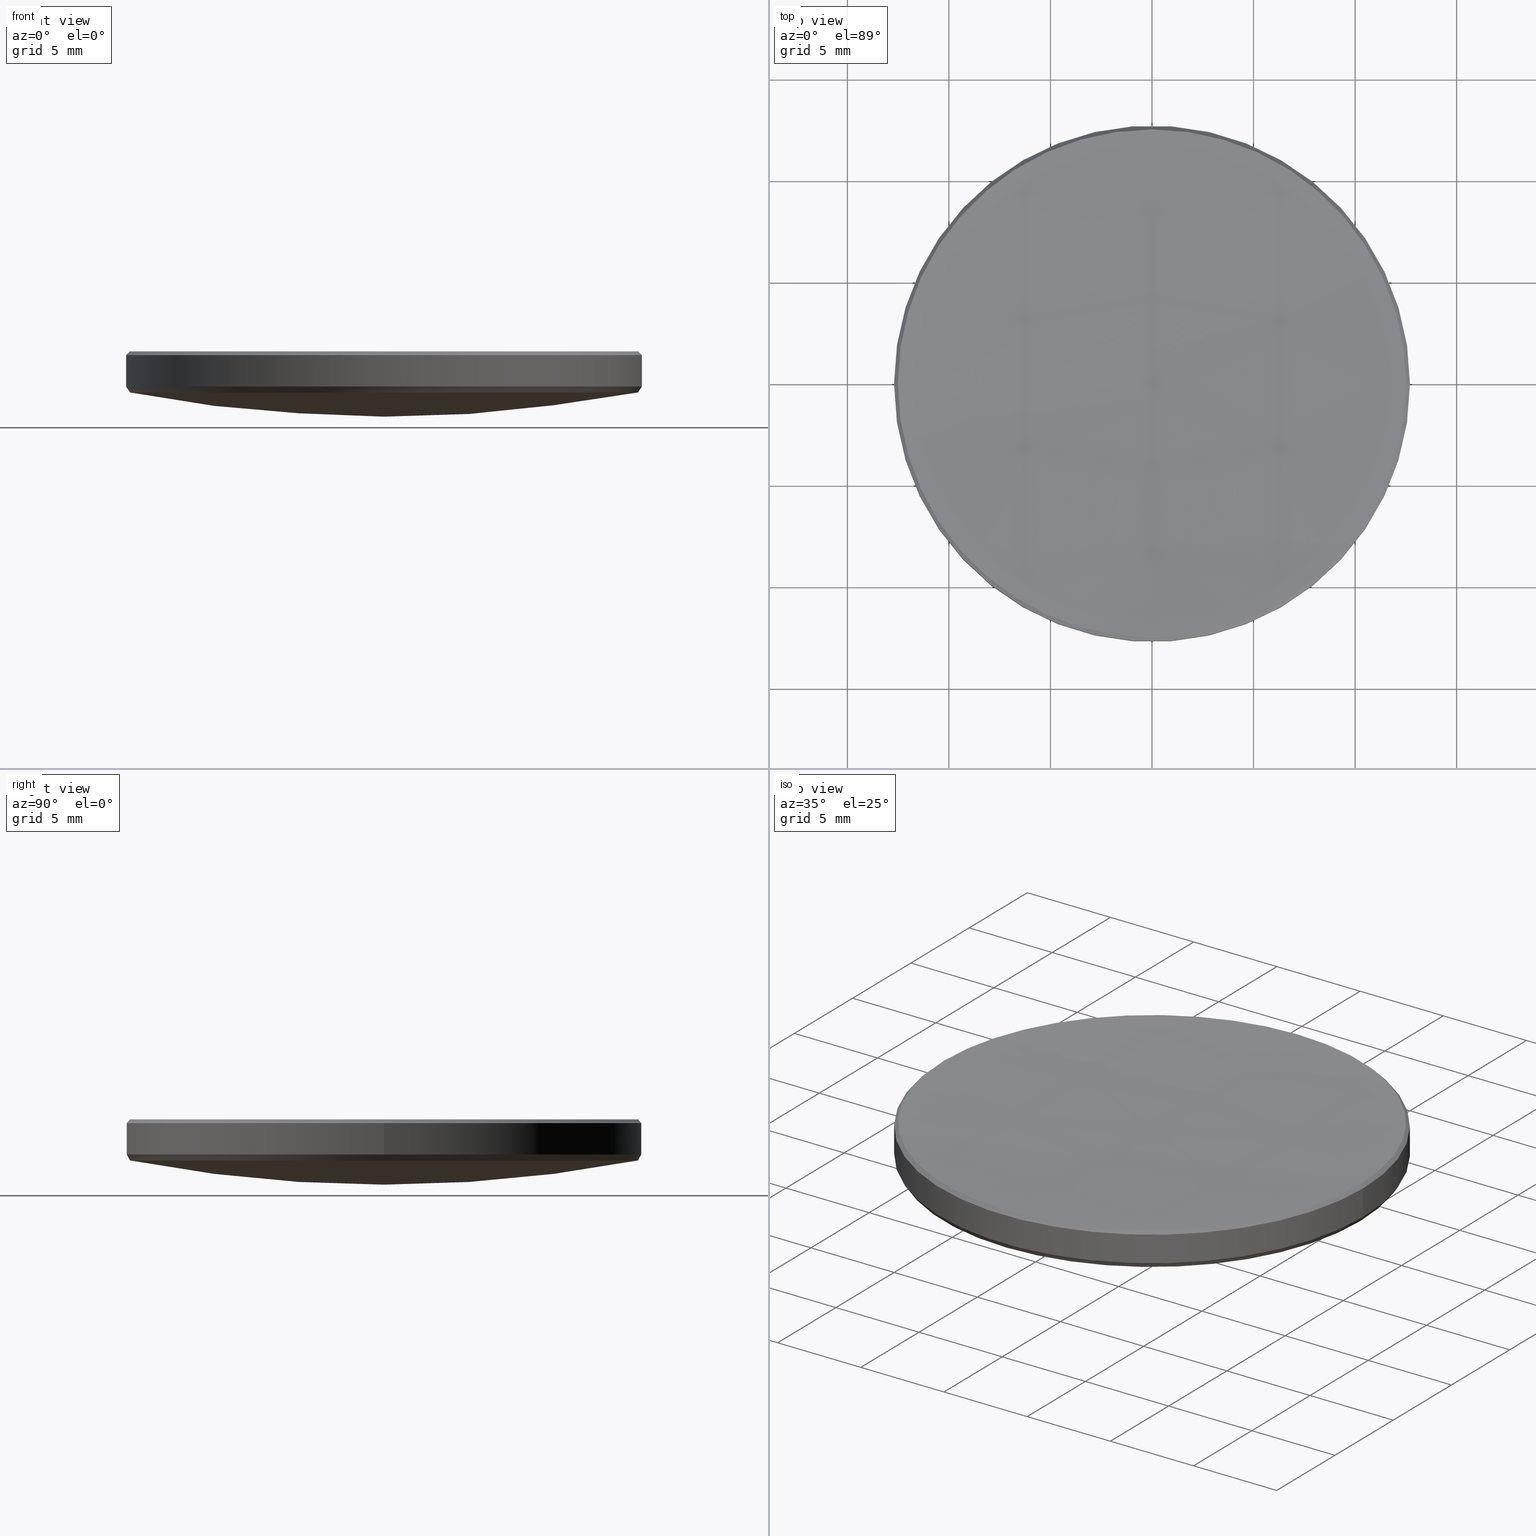
[diagram: canonical four-view strip — front | top / right | iso, engineering-drawing reading convention]
A machine part, canonical four-view strip (front | top / right | iso — engineering-drawing reading convention). The complete STEP part file that produces these views, byte-faithful:
ISO-10303-21;
HEADER;
FILE_DESCRIPTION (( 'STEP AP214' ),
    '1' );
FILE_NAME ('GLM1-025B-200-VIS.STEP',
    '2024-08-09T02:17:34',
    ( 'Windows User' ),
    ( 'P R C' ),
    'SwSTEP 2.0',
    'SolidWorks 2022',
    '' );
FILE_SCHEMA (( 'AUTOMOTIVE_DESIGN' ));
ENDSEC;

DATA;
#1 = SPHERICAL_SURFACE ( 'NONE', #135, 182.1899999999999977 ) ;
#2 = EDGE_CURVE ( 'NONE', #231, #234, #198, .T. ) ;
#3 =( NAMED_UNIT ( * ) SI_UNIT ( $, .STERADIAN. ) SOLID_ANGLE_UNIT ( ) );
#4 = CIRCLE ( 'NONE', #55, 12.51297231911478569 ) ;
#5 = EDGE_CURVE ( 'NONE', #127, #249, #228, .T. ) ;
#6 = PRESENTATION_STYLE_ASSIGNMENT (( #31 ) ) ;
#7 = CARTESIAN_POINT ( 'NONE',  ( 0.000000000000000000, 4.050519288179870232E-15, 2.769430835459427254 ) ) ;
#8 = AXIS2_PLACEMENT_3D ( 'NONE', #268, #67, #250 ) ;
#9 = DIRECTION ( 'NONE',  ( -0.000000000000000000, -0.000000000000000000, 1.000000000000000000 ) ) ;
#10 = AXIS2_PLACEMENT_3D ( 'NONE', #112, #277, #324 ) ;
#11 = ADVANCED_FACE ( 'NONE', ( #73 ), #13, .T. ) ;
#12 = FACE_OUTER_BOUND ( 'NONE', #52, .T. ) ;
#13 = CYLINDRICAL_SURFACE ( 'NONE', #137, 12.69999999999999929 ) ;
#14 = EDGE_LOOP ( 'NONE', ( #318, #317, #42, #322, #71 ) ) ;
#15 = DIRECTION ( 'NONE',  ( 1.000000000000000000, -0.000000000000000000, 0.000000000000000000 ) ) ;
#16 = ORIENTED_EDGE ( 'NONE', *, *, #57, .T. ) ;
#17 = CARTESIAN_POINT ( 'NONE',  ( -1.532397149842306047E-15, -12.51297231911454411, 5.987027680885187664 ) ) ;
#18 = ORIENTED_EDGE ( 'NONE', *, *, #36, .F. ) ;
#19 = DIRECTION ( 'NONE',  ( 1.000000000000000000, 0.000000000000000000, 0.000000000000000000 ) ) ;
#20 = ADVANCED_BREP_SHAPE_REPRESENTATION ( 'GLM1-025B-200-VIS', ( #212, #61 ), #140 ) ;
#21 = CONICAL_SURFACE ( 'NONE', #63, 12.69999999999999929, 0.5922108289621466071 ) ;
#22 = FACE_OUTER_BOUND ( 'NONE', #129, .T. ) ;
#23 = VECTOR ( 'NONE', #148, 1000.000000000000000 ) ;
#24 = SURFACE_SIDE_STYLE ('',( #183 ) ) ;
#25 = ORIENTED_EDGE ( 'NONE', *, *, #116, .T. ) ;
#26 = UNCERTAINTY_MEASURE_WITH_UNIT (LENGTH_MEASURE( 1.000000000000000082E-05 ), #130, 'distance_accuracy_value', 'NONE');
#27 = ORIENTED_EDGE ( 'NONE', *, *, #91, .F. ) ;
#28 = DIRECTION ( 'NONE',  ( 0.000000000000000000, 1.000000000000000000, 0.000000000000000000 ) ) ;
#29 = ADVANCED_FACE ( 'NONE', ( #39 ), #21, .T. ) ;
#30 = CIRCLE ( 'NONE', #286, 12.69999999999999929 ) ;
#31 = SURFACE_STYLE_USAGE ( .BOTH. , #88 ) ;
#32 = CIRCLE ( 'NONE', #254, 12.51297231911478569 ) ;
#33 = SPHERICAL_SURFACE ( 'NONE', #10, 66.15000000000000568 ) ;
#34 = CARTESIAN_POINT ( 'NONE',  ( 0.000000000000000000, 0.000000000000000000, 187.7468186791724918 ) ) ;
#35 = EDGE_LOOP ( 'NONE', ( #27, #104, #101, #306 ) ) ;
#36 = EDGE_CURVE ( 'NONE', #175, #274, #300, .T. ) ;
#37 = AXIS2_PLACEMENT_3D ( 'NONE', #114, #38, #45 ) ;
#38 = DIRECTION ( 'NONE',  ( 0.000000000000000000, 0.000000000000000000, -1.000000000000000000 ) ) ;
#39 = FACE_OUTER_BOUND ( 'NONE', #14, .T. ) ;
#40 = AXIS2_PLACEMENT_3D ( 'NONE', #51, #82, #329 ) ;
#41 = DIRECTION ( 'NONE',  ( -0.000000000000000000, -0.000000000000000000, 1.000000000000000000 ) ) ;
#42 = ORIENTED_EDGE ( 'NONE', *, *, #246, .F. ) ;
#43 = PRODUCT_RELATED_PRODUCT_CATEGORY ( 'part', '', ( #262 ) ) ;
#44 = EDGE_LOOP ( 'NONE', ( #270, #332, #259, #180 ) ) ;
#45 = DIRECTION ( 'NONE',  ( -1.000000000000000000, 0.000000000000000000, 0.000000000000000000 ) ) ;
#46 = CARTESIAN_POINT ( 'NONE',  ( 0.000000000000000000, 0.000000000000000000, 3.961956115965656444 ) ) ;
#47 = CONICAL_SURFACE ( 'NONE', #40, 12.51297231911478214, 0.7853981633974530530 ) ;
#48 = VERTEX_POINT ( 'NONE', #65 ) ;
#49 = APPLICATION_PROTOCOL_DEFINITION ( 'draft international standard', 'automotive_design', 1998, #314 ) ;
#50 = CIRCLE ( 'NONE', #153, 12.50395849586555030 ) ;
#51 = CARTESIAN_POINT ( 'NONE',  ( 0.000000000000000000, 0.000000000000000000, 5.987027680885242731 ) ) ;
#52 = EDGE_LOOP ( 'NONE', ( #297, #247, #310, #18, #210 ) ) ;
#53 = SURFACE_STYLE_USAGE ( .BOTH. , #24 ) ;
#54 = ORIENTED_EDGE ( 'NONE', *, *, #5, .F. ) ;
#55 = AXIS2_PLACEMENT_3D ( 'NONE', #244, #41, #295 ) ;
#56 = CARTESIAN_POINT ( 'NONE',  ( 0.000000000000000000, 0.000000000000000000, 4.253353967830220128 ) ) ;
#57 = EDGE_CURVE ( 'NONE', #139, #115, #32, .T. ) ;
#58 = DIRECTION ( 'NONE',  ( 0.000000000000000000, 0.000000000000000000, -1.000000000000000000 ) ) ;
#59 = CARTESIAN_POINT ( 'NONE',  ( 0.000000000000000000, 0.000000000000000000, 3.961956115965656444 ) ) ;
#60 = EDGE_CURVE ( 'NONE', #48, #139, #110, .T. ) ;
#61 = AXIS2_PLACEMENT_3D ( 'NONE', #325, #157, #102 ) ;
#62 = ORIENTED_EDGE ( 'NONE', *, *, #136, .F. ) ;
#63 = AXIS2_PLACEMENT_3D ( 'NONE', #221, #173, #272 ) ;
#64 = DIRECTION ( 'NONE',  ( 0.000000000000000000, 0.000000000000000000, -1.000000000000000000 ) ) ;
#65 = CARTESIAN_POINT ( 'NONE',  ( 0.000000000000000000, 12.51297231911454411, 5.987027680885187664 ) ) ;
#66 = AXIS2_PLACEMENT_3D ( 'NONE', #93, #72, #117 ) ;
#67 = DIRECTION ( 'NONE',  ( 0.000000000000000000, 0.000000000000000000, -1.000000000000000000 ) ) ;
#68 = DIRECTION ( 'NONE',  ( 0.7071067811865507924, 8.659560562354974766E-17, -0.7071067811865441310 ) ) ;
#69 = EDGE_CURVE ( 'NONE', #234, #158, #50, .T. ) ;
#70 = DIRECTION ( 'NONE',  ( -1.000000000000000000, 0.000000000000000000, 0.000000000000000000 ) ) ;
#71 = ORIENTED_EDGE ( 'NONE', *, *, #225, .F. ) ;
#72 = DIRECTION ( 'NONE',  ( -0.000000000000000000, -0.000000000000000000, 1.000000000000000000 ) ) ;
#73 = FACE_OUTER_BOUND ( 'NONE', #44, .T. ) ;
#74 = COLOUR_RGB ( '',1.000000000000000000, 1.000000000000000000, 1.000000000000000000 ) ;
#75 = ORIENTED_EDGE ( 'NONE', *, *, #279, .F. ) ;
#76 = AXIS2_PLACEMENT_3D ( 'NONE', #280, #151, #19 ) ;
#77 = CARTESIAN_POINT ( 'NONE',  ( -12.69999999999999929, 0.000000000000000000, 5.800000000000027356 ) ) ;
#78 = PRESENTATION_STYLE_ASSIGNMENT (( #53 ) ) ;
#79 = ORIENTED_EDGE ( 'NONE', *, *, #116, .F. ) ;
#80 = EDGE_CURVE ( 'NONE', #274, #200, #224, .T. ) ;
#81 = ORIENTED_EDGE ( 'NONE', *, *, #301, .T. ) ;
#82 = DIRECTION ( 'NONE',  ( 0.000000000000000000, 0.000000000000000000, -1.000000000000000000 ) ) ;
#83 = EDGE_LOOP ( 'NONE', ( #97, #258, #122, #150 ) ) ;
#84 = FACE_OUTER_BOUND ( 'NONE', #83, .T. ) ;
#85 = AXIS2_PLACEMENT_3D ( 'NONE', #202, #70, #174 ) ;
#86 =( NAMED_UNIT ( * ) PLANE_ANGLE_UNIT ( ) SI_UNIT ( $, .RADIAN. ) );
#87 = DIRECTION ( 'NONE',  ( 1.000000000000000000, 0.000000000000000000, 0.000000000000000000 ) ) ;
#88 = SURFACE_SIDE_STYLE ('',( #239 ) ) ;
#89 = APPLICATION_CONTEXT ( 'automotive_design' ) ;
#90 = FILL_AREA_STYLE ('',( #315 ) ) ;
#91 = EDGE_CURVE ( 'NONE', #253, #231, #308, .T. ) ;
#92 = AXIS2_PLACEMENT_3D ( 'NONE', #266, #58, #165 ) ;
#93 = CARTESIAN_POINT ( 'NONE',  ( 0.000000000000000000, 0.000000000000000000, 4.253353967830220128 ) ) ;
#94 = ORIENTED_EDGE ( 'NONE', *, *, #69, .T. ) ;
#95 = CLOSED_SHELL ( 'NONE', ( #96, #108, #192, #283, #11, #215, #182, #220, #29, #307 ) ) ;
#96 = ADVANCED_FACE ( 'NONE', ( #176 ), #216, .T. ) ;
#97 = ORIENTED_EDGE ( 'NONE', *, *, #131, .F. ) ;
#98 = CARTESIAN_POINT ( 'NONE',  ( -12.69999999999999929, 1.555301434917138433E-15, 4.253353967830220128 ) ) ;
#99 = DIRECTION ( 'NONE',  ( 1.000000000000000000, 0.000000000000000000, 0.000000000000000000 ) ) ;
#100 = FACE_OUTER_BOUND ( 'NONE', #133, .T. ) ;
#101 = ORIENTED_EDGE ( 'NONE', *, *, #237, .T. ) ;
#102 = DIRECTION ( 'NONE',  ( 1.000000000000000000, 0.000000000000000000, 0.000000000000000000 ) ) ;
#103 = PRESENTATION_LAYER_ASSIGNMENT (  '', '', ( #201 ) ) ;
#104 = ORIENTED_EDGE ( 'NONE', *, *, #188, .T. ) ;
#105 = CIRCLE ( 'NONE', #76, 12.51297231911478569 ) ;
#106 = FILL_AREA_STYLE ('',( #252 ) ) ;
#107 = ORIENTED_EDGE ( 'NONE', *, *, #136, .T. ) ;
#108 = ADVANCED_FACE ( 'NONE', ( #12 ), #171, .T. ) ;
#109 = DIRECTION ( 'NONE',  ( -0.000000000000000000, -0.000000000000000000, -1.000000000000000000 ) ) ;
#110 = CIRCLE ( 'NONE', #294, 12.51297231911478569 ) ;
#111 = VECTOR ( 'NONE', #271, 1000.000000000000000 ) ;
#112 = CARTESIAN_POINT ( 'NONE',  ( 0.000000000000000000, 0.000000000000000000, 68.91943083545942272 ) ) ;
#113 = DIRECTION ( 'NONE',  ( 1.000000000000000000, 0.000000000000000000, 0.000000000000000000 ) ) ;
#114 = CARTESIAN_POINT ( 'NONE',  ( 0.000000000000000000, 0.000000000000000000, 5.987027680885242731 ) ) ;
#115 = VERTEX_POINT ( 'NONE', #17 ) ;
#116 = EDGE_CURVE ( 'NONE', #256, #115, #155, .T. ) ;
#117 = DIRECTION ( 'NONE',  ( 1.000000000000000000, 0.000000000000000000, 0.000000000000000000 ) ) ;
#118 = DIRECTION ( 'NONE',  ( -0.000000000000000000, -0.000000000000000000, 1.000000000000000000 ) ) ;
#119 = AXIS2_PLACEMENT_3D ( 'NONE', #245, #226, #99 ) ;
#120 = DIRECTION ( 'NONE',  ( -1.224646799147352961E-16, -1.000000000000000000, 0.000000000000000000 ) ) ;
#121 = ORIENTED_EDGE ( 'NONE', *, *, #91, .T. ) ;
#122 = ORIENTED_EDGE ( 'NONE', *, *, #330, .T. ) ;
#123 =( NAMED_UNIT ( * ) SI_UNIT ( $, .STERADIAN. ) SOLID_ANGLE_UNIT ( ) );
#124 = DIRECTION ( 'NONE',  ( 1.000000000000000000, 0.000000000000000000, 0.000000000000000000 ) ) ;
#125 = DIRECTION ( 'NONE',  ( 1.000000000000000000, 0.000000000000000000, 0.000000000000000000 ) ) ;
#126 = AXIS2_PLACEMENT_3D ( 'NONE', #172, #142, #120 ) ;
#127 = VERTEX_POINT ( 'NONE', #248 ) ;
#128 = CIRCLE ( 'NONE', #312, 66.15000000000000568 ) ;
#129 = EDGE_LOOP ( 'NONE', ( #320, #121, #147, #94 ) ) ;
#130 =( LENGTH_UNIT ( ) NAMED_UNIT ( * ) SI_UNIT ( .MILLI., .METRE. ) );
#131 = EDGE_CURVE ( 'NONE', #249, #274, #168, .T. ) ;
#132 = PRODUCT_CONTEXT ( 'NONE', #314, 'mechanical' ) ;
#133 = EDGE_LOOP ( 'NONE', ( #326, #25, #107, #223 ) ) ;
#134 = PRODUCT_DEFINITION_CONTEXT ( 'detailed design', #89, 'design' ) ;
#135 = AXIS2_PLACEMENT_3D ( 'NONE', #311, #260, #28 ) ;
#136 = EDGE_CURVE ( 'NONE', #115, #127, #4, .T. ) ;
#137 = AXIS2_PLACEMENT_3D ( 'NONE', #203, #299, #205 ) ;
#138 = CARTESIAN_POINT ( 'NONE',  ( -12.50395849586555030, 1.543297354890224221E-15, 3.961956115965656444 ) ) ;
#139 = VERTEX_POINT ( 'NONE', #222 ) ;
#140 =( GEOMETRIC_REPRESENTATION_CONTEXT ( 3 ) GLOBAL_UNCERTAINTY_ASSIGNED_CONTEXT ( ( #284 ) ) GLOBAL_UNIT_ASSIGNED_CONTEXT ( ( #278, #281, #123 ) ) REPRESENTATION_CONTEXT ( 'NONE', 'WORKASPACE' ) );
#141 = MECHANICAL_DESIGN_GEOMETRIC_PRESENTATION_REPRESENTATION (  '', ( #201 ), #304 ) ;
#142 = DIRECTION ( 'NONE',  ( -1.000000000000000000, 1.224646799147353207E-16, 0.000000000000000000 ) ) ;
#143 = DIRECTION ( 'NONE',  ( -0.000000000000000000, -0.000000000000000000, 1.000000000000000000 ) ) ;
#144 = FACE_OUTER_BOUND ( 'NONE', #35, .T. ) ;
#145 = CARTESIAN_POINT ( 'NONE',  ( 12.51297231911478214, 1.532397149842335037E-15, 5.987027680885242731 ) ) ;
#146 = CARTESIAN_POINT ( 'NONE',  ( 0.000000000000000000, 0.000000000000000000, 68.91943083545942272 ) ) ;
#147 = ORIENTED_EDGE ( 'NONE', *, *, #2, .T. ) ;
#148 = DIRECTION ( 'NONE',  ( -0.000000000000000000, -0.000000000000000000, -1.000000000000000000 ) ) ;
#149 = ORIENTED_EDGE ( 'NONE', *, *, #154, .F. ) ;
#150 = ORIENTED_EDGE ( 'NONE', *, *, #225, .T. ) ;
#151 = DIRECTION ( 'NONE',  ( -0.000000000000000000, -0.000000000000000000, 1.000000000000000000 ) ) ;
#152 = APPLICATION_PROTOCOL_DEFINITION ( 'draft international standard', 'automotive_design', 1998, #89 ) ;
#153 = AXIS2_PLACEMENT_3D ( 'NONE', #46, #251, #230 ) ;
#154 = EDGE_CURVE ( 'NONE', #249, #293, #189, .T. ) ;
#155 = CIRCLE ( 'NONE', #327, 182.1899999999999977 ) ;
#156 = ORIENTED_EDGE ( 'NONE', *, *, #60, .T. ) ;
#157 = DIRECTION ( 'NONE',  ( 0.000000000000000000, 0.000000000000000000, 1.000000000000000000 ) ) ;
#158 = VERTEX_POINT ( 'NONE', #292 ) ;
#159 = CARTESIAN_POINT ( 'NONE',  ( 0.000000000000000000, 0.000000000000000000, 10.00000000000000000 ) ) ;
#160 = EDGE_CURVE ( 'NONE', #293, #249, #269, .T. ) ;
#161 = AXIS2_PLACEMENT_3D ( 'NONE', #159, #109, #287 ) ;
#162 = CARTESIAN_POINT ( 'NONE',  ( 0.000000000000000000, 0.000000000000000000, 187.7468186791724918 ) ) ;
#163 = PRODUCT_DEFINITION ( 'δ֪', '', #211, #134 ) ;
#164 = DIRECTION ( 'NONE',  ( 0.000000000000000000, 1.000000000000000000, 0.000000000000000000 ) ) ;
#165 = DIRECTION ( 'NONE',  ( 1.000000000000000000, 0.000000000000000000, 0.000000000000000000 ) ) ;
#166 = DIRECTION ( 'NONE',  ( -0.000000000000000000, -0.000000000000000000, 1.000000000000000000 ) ) ;
#167 = EDGE_LOOP ( 'NONE', ( #79, #81, #156, #16 ) ) ;
#168 = LINE ( 'NONE', #298, #23 ) ;
#169 = CARTESIAN_POINT ( 'NONE',  ( 0.000000000000000000, 0.000000000000000000, 5.987027680885187664 ) ) ;
#170 = EDGE_CURVE ( 'NONE', #234, #200, #229, .T. ) ;
#171 = CONICAL_SURFACE ( 'NONE', #66, 12.69999999999999929, 0.5922108289621466071 ) ;
#172 = CARTESIAN_POINT ( 'NONE',  ( 0.000000000000000000, 0.000000000000000000, 68.91943083545942272 ) ) ;
#173 = DIRECTION ( 'NONE',  ( -0.000000000000000000, -0.000000000000000000, 1.000000000000000000 ) ) ;
#174 = DIRECTION ( 'NONE',  ( 0.000000000000000000, 1.000000000000000000, 0.000000000000000000 ) ) ;
#175 = VERTEX_POINT ( 'NONE', #199 ) ;
#176 = FACE_OUTER_BOUND ( 'NONE', #267, .T. ) ;
#177 = CARTESIAN_POINT ( 'NONE',  ( 0.000000000000000000, 0.000000000000000000, 5.987027680885187664 ) ) ;
#178 = CARTESIAN_POINT ( 'NONE',  ( -12.69999999999999929, 0.000000000000000000, 10.00000000000000000 ) ) ;
#179 = AXIS2_PLACEMENT_3D ( 'NONE', #59, #238, #113 ) ;
#180 = ORIENTED_EDGE ( 'NONE', *, *, #330, .F. ) ;
#181 = CARTESIAN_POINT ( 'NONE',  ( 12.69999999999999929, 1.555301434917138433E-15, 4.253353967830220128 ) ) ;
#182 = ADVANCED_FACE ( 'NONE', ( #144 ), #195, .T. ) ;
#183 = SURFACE_STYLE_FILL_AREA ( #106 ) ;
#184 = VECTOR ( 'NONE', #68, 1000.000000000000114 ) ;
#185 = FACE_OUTER_BOUND ( 'NONE', #209, .T. ) ;
#186 = ORIENTED_EDGE ( 'NONE', *, *, #196, .F. ) ;
#187 = UNCERTAINTY_MEASURE_WITH_UNIT (LENGTH_MEASURE( 1.000000000000000082E-05 ), #313, 'distance_accuracy_value', 'NONE');
#188 = EDGE_CURVE ( 'NONE', #253, #158, #128, .T. ) ;
#189 = CIRCLE ( 'NONE', #242, 12.69999999999999929 ) ;
#190 = CIRCLE ( 'NONE', #92, 12.50395849586555030 ) ;
#191 = CARTESIAN_POINT ( 'NONE',  ( -12.69999999999999929, 0.000000000000000000, 4.253353967830220128 ) ) ;
#192 = ADVANCED_FACE ( 'NONE', ( #100 ), #217, .F. ) ;
#193 = CARTESIAN_POINT ( 'NONE',  ( -1.531293274863309419E-15, -12.50395849586554675, 3.961956115965656444 ) ) ;
#194 = PRODUCT_DEFINITION_SHAPE ( 'NONE', 'NONE',  #163 ) ;
#195 = SPHERICAL_SURFACE ( 'NONE', #85, 66.15000000000000568 ) ;
#196 = EDGE_CURVE ( 'NONE', #139, #293, #265, .T. ) ;
#197 = DIRECTION ( 'NONE',  ( 0.5581967294551084535, 0.000000000000000000, 0.8297086303188730971 ) ) ;
#198 = CIRCLE ( 'NONE', #119, 12.50395849586555030 ) ;
#199 = CARTESIAN_POINT ( 'NONE',  ( 12.50395849586555030, 0.000000000000000000, 3.961956115965656444 ) ) ;
#200 = VERTEX_POINT ( 'NONE', #191 ) ;
#201 = STYLED_ITEM ( 'NONE', ( #6 ), #212 ) ;
#202 = CARTESIAN_POINT ( 'NONE',  ( 0.000000000000000000, 0.000000000000000000, 68.91943083545942272 ) ) ;
#203 = CARTESIAN_POINT ( 'NONE',  ( 0.000000000000000000, 0.000000000000000000, 10.00000000000000000 ) ) ;
#204 = CARTESIAN_POINT ( 'NONE',  ( 0.000000000000000000, 0.000000000000000000, 5.800000000000027356 ) ) ;
#205 = DIRECTION ( 'NONE',  ( -1.000000000000000000, 0.000000000000000000, 0.000000000000000000 ) ) ;
#206 = LINE ( 'NONE', #178, #232 ) ;
#207 = MECHANICAL_DESIGN_GEOMETRIC_PRESENTATION_REPRESENTATION (  '', ( #241 ), #291 ) ;
#208 = AXIS2_PLACEMENT_3D ( 'NONE', #34, #263, #164 ) ;
#209 = EDGE_LOOP ( 'NONE', ( #54, #62, #303, #282, #149 ) ) ;
#210 = ORIENTED_EDGE ( 'NONE', *, *, #237, .F. ) ;
#211 = PRODUCT_DEFINITION_FORMATION_WITH_SPECIFIED_SOURCE ( '�κ�', '', #262, .NOT_KNOWN. ) ;
#212 = MANIFOLD_SOLID_BREP ( '����1', #95 ) ;
#213 = VECTOR ( 'NONE', #197, 1000.000000000000000 ) ;
#214 = FACE_OUTER_BOUND ( 'NONE', #167, .T. ) ;
#215 = ADVANCED_FACE ( 'NONE', ( #84 ), #236, .T. ) ;
#216 = CONICAL_SURFACE ( 'NONE', #37, 12.51297231911478214, 0.7853981633974530530 ) ;
#217 = SPHERICAL_SURFACE ( 'NONE', #208, 182.1899999999999977 ) ;
#218 = DIRECTION ( 'NONE',  ( -1.000000000000000000, 0.000000000000000000, 0.000000000000000000 ) ) ;
#219 = AXIS2_PLACEMENT_3D ( 'NONE', #162, #87, #305 ) ;
#220 = ADVANCED_FACE ( 'NONE', ( #214 ), #1, .F. ) ;
#221 = CARTESIAN_POINT ( 'NONE',  ( 0.000000000000000000, 0.000000000000000000, 4.253353967830220128 ) ) ;
#222 = CARTESIAN_POINT ( 'NONE',  ( -12.51297231911478569, 0.000000000000000000, 5.987027680885187664 ) ) ;
#223 = ORIENTED_EDGE ( 'NONE', *, *, #279, .T. ) ;
#224 = CIRCLE ( 'NONE', #264, 12.69999999999999929 ) ;
#225 = EDGE_CURVE ( 'NONE', #200, #274, #30, .T. ) ;
#226 = DIRECTION ( 'NONE',  ( 0.000000000000000000, 0.000000000000000000, -1.000000000000000000 ) ) ;
#227 = DIRECTION ( 'NONE',  ( 0.000000000000000000, 0.000000000000000000, -1.000000000000000000 ) ) ;
#228 = LINE ( 'NONE', #145, #184 ) ;
#229 = LINE ( 'NONE', #98, #111 ) ;
#230 = DIRECTION ( 'NONE',  ( 1.000000000000000000, 0.000000000000000000, 0.000000000000000000 ) ) ;
#231 = VERTEX_POINT ( 'NONE', #193 ) ;
#232 = VECTOR ( 'NONE', #302, 1000.000000000000000 ) ;
#233 =( NAMED_UNIT ( * ) PLANE_ANGLE_UNIT ( ) SI_UNIT ( $, .RADIAN. ) );
#234 = VERTEX_POINT ( 'NONE', #138 ) ;
#235 = CIRCLE ( 'NONE', #179, 12.50395849586555030 ) ;
#236 = CYLINDRICAL_SURFACE ( 'NONE', #161, 12.69999999999999929 ) ;
#237 = EDGE_CURVE ( 'NONE', #158, #175, #190, .T. ) ;
#238 = DIRECTION ( 'NONE',  ( 0.000000000000000000, 0.000000000000000000, -1.000000000000000000 ) ) ;
#239 = SURFACE_STYLE_FILL_AREA ( #90 ) ;
#240 = CARTESIAN_POINT ( 'NONE',  ( 12.69999999999999929, 1.555301434917138433E-15, 5.800000000000027356 ) ) ;
#241 = STYLED_ITEM ( 'NONE', ( #78 ), #20 ) ;
#242 = AXIS2_PLACEMENT_3D ( 'NONE', #204, #64, #124 ) ;
#243 = CARTESIAN_POINT ( 'NONE',  ( 12.69999999999999929, 0.000000000000000000, 4.253353967830220128 ) ) ;
#244 = CARTESIAN_POINT ( 'NONE',  ( 0.000000000000000000, 0.000000000000000000, 5.987027680885187664 ) ) ;
#245 = CARTESIAN_POINT ( 'NONE',  ( 0.000000000000000000, 0.000000000000000000, 3.961956115965656444 ) ) ;
#246 = EDGE_CURVE ( 'NONE', #175, #231, #235, .T. ) ;
#247 = ORIENTED_EDGE ( 'NONE', *, *, #170, .T. ) ;
#248 = CARTESIAN_POINT ( 'NONE',  ( 12.51297231911478569, 1.543849292379736932E-15, 5.987027680885187664 ) ) ;
#249 = VERTEX_POINT ( 'NONE', #240 ) ;
#250 = DIRECTION ( 'NONE',  ( 1.000000000000000000, 0.000000000000000000, 0.000000000000000000 ) ) ;
#251 = DIRECTION ( 'NONE',  ( 0.000000000000000000, 0.000000000000000000, -1.000000000000000000 ) ) ;
#252 = FILL_AREA_STYLE_COLOUR ( '', #74 ) ;
#253 = VERTEX_POINT ( 'NONE', #7 ) ;
#254 = AXIS2_PLACEMENT_3D ( 'NONE', #177, #143, #125 ) ;
#255 = SHAPE_DEFINITION_REPRESENTATION ( #194, #20 ) ;
#256 = VERTEX_POINT ( 'NONE', #316 ) ;
#257 = COLOUR_RGB ( '',1.000000000000000000, 1.000000000000000000, 1.000000000000000000 ) ;
#258 = ORIENTED_EDGE ( 'NONE', *, *, #154, .T. ) ;
#259 = ORIENTED_EDGE ( 'NONE', *, *, #80, .T. ) ;
#260 = DIRECTION ( 'NONE',  ( -1.000000000000000000, 0.000000000000000000, 0.000000000000000000 ) ) ;
#261 = PRESENTATION_LAYER_ASSIGNMENT (  '', '', ( #241 ) ) ;
#262 = PRODUCT ( 'GLM1-025B-200-VIS', 'GLM1-025B-200-VIS', '', ( #132 ) ) ;
#263 = DIRECTION ( 'NONE',  ( -1.000000000000000000, 0.000000000000000000, 0.000000000000000000 ) ) ;
#264 = AXIS2_PLACEMENT_3D ( 'NONE', #323, #9, #321 ) ;
#265 = LINE ( 'NONE', #289, #296 ) ;
#266 = CARTESIAN_POINT ( 'NONE',  ( 0.000000000000000000, 0.000000000000000000, 3.961956115965656444 ) ) ;
#267 = EDGE_LOOP ( 'NONE', ( #75, #331, #285, #186, #290 ) ) ;
#268 = CARTESIAN_POINT ( 'NONE',  ( 0.000000000000000000, 0.000000000000000000, 5.800000000000027356 ) ) ;
#269 = CIRCLE ( 'NONE', #8, 12.69999999999999929 ) ;
#270 = ORIENTED_EDGE ( 'NONE', *, *, #160, .T. ) ;
#271 = DIRECTION ( 'NONE',  ( -0.5581967294551084535, 6.835938380217195988E-17, 0.8297086303188730971 ) ) ;
#272 = DIRECTION ( 'NONE',  ( 1.000000000000000000, 0.000000000000000000, 0.000000000000000000 ) ) ;
#273 = DIRECTION ( 'NONE',  ( -1.224646799147352961E-16, -1.000000000000000000, 0.000000000000000000 ) ) ;
#274 = VERTEX_POINT ( 'NONE', #181 ) ;
#275 = DIRECTION ( 'NONE',  ( -1.000000000000000000, 1.224646799147353207E-16, 0.000000000000000000 ) ) ;
#276 = DIRECTION ( 'NONE',  ( 1.000000000000000000, 0.000000000000000000, 0.000000000000000000 ) ) ;
#277 = DIRECTION ( 'NONE',  ( -1.000000000000000000, 0.000000000000000000, 0.000000000000000000 ) ) ;
#278 =( LENGTH_UNIT ( ) NAMED_UNIT ( * ) SI_UNIT ( .MILLI., .METRE. ) );
#279 = EDGE_CURVE ( 'NONE', #127, #48, #105, .T. ) ;
#280 = CARTESIAN_POINT ( 'NONE',  ( 0.000000000000000000, 0.000000000000000000, 5.987027680885187664 ) ) ;
#281 =( NAMED_UNIT ( * ) PLANE_ANGLE_UNIT ( ) SI_UNIT ( $, .RADIAN. ) );
#282 = ORIENTED_EDGE ( 'NONE', *, *, #196, .T. ) ;
#283 = ADVANCED_FACE ( 'NONE', ( #22 ), #33, .T. ) ;
#284 = UNCERTAINTY_MEASURE_WITH_UNIT (LENGTH_MEASURE( 1.000000000000000082E-05 ), #278, 'distance_accuracy_value', 'NONE');
#285 = ORIENTED_EDGE ( 'NONE', *, *, #160, .F. ) ;
#286 = AXIS2_PLACEMENT_3D ( 'NONE', #56, #166, #218 ) ;
#287 = DIRECTION ( 'NONE',  ( -1.000000000000000000, 0.000000000000000000, 0.000000000000000000 ) ) ;
#288 = DIRECTION ( 'NONE',  ( -0.7071067811865507924, 0.000000000000000000, -0.7071067811865441310 ) ) ;
#289 = CARTESIAN_POINT ( 'NONE',  ( -12.51297231911478214, 0.000000000000000000, 5.987027680885242731 ) ) ;
#290 = ORIENTED_EDGE ( 'NONE', *, *, #60, .F. ) ;
#291 =( GEOMETRIC_REPRESENTATION_CONTEXT ( 3 ) GLOBAL_UNCERTAINTY_ASSIGNED_CONTEXT ( ( #26 ) ) GLOBAL_UNIT_ASSIGNED_CONTEXT ( ( #130, #233, #309 ) ) REPRESENTATION_CONTEXT ( 'NONE', 'WORKASPACE' ) );
#292 = CARTESIAN_POINT ( 'NONE',  ( 0.000000000000000000, 12.50395849586554675, 3.961956115965656444 ) ) ;
#293 = VERTEX_POINT ( 'NONE', #77 ) ;
#294 = AXIS2_PLACEMENT_3D ( 'NONE', #169, #118, #276 ) ;
#295 = DIRECTION ( 'NONE',  ( 1.000000000000000000, 0.000000000000000000, 0.000000000000000000 ) ) ;
#296 = VECTOR ( 'NONE', #288, 1000.000000000000114 ) ;
#297 = ORIENTED_EDGE ( 'NONE', *, *, #69, .F. ) ;
#298 = CARTESIAN_POINT ( 'NONE',  ( 12.69999999999999929, 1.555301434917138433E-15, 10.00000000000000000 ) ) ;
#299 = DIRECTION ( 'NONE',  ( -0.000000000000000000, -0.000000000000000000, -1.000000000000000000 ) ) ;
#300 = LINE ( 'NONE', #243, #213 ) ;
#301 = EDGE_CURVE ( 'NONE', #256, #48, #328, .T. ) ;
#302 = DIRECTION ( 'NONE',  ( -0.000000000000000000, -0.000000000000000000, -1.000000000000000000 ) ) ;
#303 = ORIENTED_EDGE ( 'NONE', *, *, #57, .F. ) ;
#304 =( GEOMETRIC_REPRESENTATION_CONTEXT ( 3 ) GLOBAL_UNCERTAINTY_ASSIGNED_CONTEXT ( ( #187 ) ) GLOBAL_UNIT_ASSIGNED_CONTEXT ( ( #313, #86, #3 ) ) REPRESENTATION_CONTEXT ( 'NONE', 'WORKASPACE' ) );
#305 = DIRECTION ( 'NONE',  ( 0.000000000000000000, 0.000000000000000000, -1.000000000000000000 ) ) ;
#306 = ORIENTED_EDGE ( 'NONE', *, *, #246, .T. ) ;
#307 = ADVANCED_FACE ( 'NONE', ( #185 ), #47, .T. ) ;
#308 = CIRCLE ( 'NONE', #126, 66.15000000000000568 ) ;
#309 =( NAMED_UNIT ( * ) SI_UNIT ( $, .STERADIAN. ) SOLID_ANGLE_UNIT ( ) );
#310 = ORIENTED_EDGE ( 'NONE', *, *, #80, .F. ) ;
#311 = CARTESIAN_POINT ( 'NONE',  ( 0.000000000000000000, 0.000000000000000000, 187.7468186791724918 ) ) ;
#312 = AXIS2_PLACEMENT_3D ( 'NONE', #146, #15, #227 ) ;
#313 =( LENGTH_UNIT ( ) NAMED_UNIT ( * ) SI_UNIT ( .MILLI., .METRE. ) );
#314 = APPLICATION_CONTEXT ( 'automotive_design' ) ;
#315 = FILL_AREA_STYLE_COLOUR ( '', #257 ) ;
#316 = CARTESIAN_POINT ( 'NONE',  ( 0.000000000000000000, 1.115592001683281265E-14, 5.556818679172486952 ) ) ;
#317 = ORIENTED_EDGE ( 'NONE', *, *, #2, .F. ) ;
#318 = ORIENTED_EDGE ( 'NONE', *, *, #170, .F. ) ;
#319 = CARTESIAN_POINT ( 'NONE',  ( 0.000000000000000000, 0.000000000000000000, 187.7468186791724918 ) ) ;
#320 = ORIENTED_EDGE ( 'NONE', *, *, #188, .F. ) ;
#321 = DIRECTION ( 'NONE',  ( -1.000000000000000000, 0.000000000000000000, 0.000000000000000000 ) ) ;
#322 = ORIENTED_EDGE ( 'NONE', *, *, #36, .T. ) ;
#323 = CARTESIAN_POINT ( 'NONE',  ( 0.000000000000000000, 0.000000000000000000, 4.253353967830220128 ) ) ;
#324 = DIRECTION ( 'NONE',  ( 0.000000000000000000, 1.000000000000000000, 0.000000000000000000 ) ) ;
#325 = CARTESIAN_POINT ( 'NONE',  ( 0.000000000000000000, 0.000000000000000000, 0.000000000000000000 ) ) ;
#326 = ORIENTED_EDGE ( 'NONE', *, *, #301, .F. ) ;
#327 = AXIS2_PLACEMENT_3D ( 'NONE', #319, #275, #273 ) ;
#328 = CIRCLE ( 'NONE', #219, 182.1899999999999977 ) ;
#329 = DIRECTION ( 'NONE',  ( -1.000000000000000000, 0.000000000000000000, 0.000000000000000000 ) ) ;
#330 = EDGE_CURVE ( 'NONE', #293, #200, #206, .T. ) ;
#331 = ORIENTED_EDGE ( 'NONE', *, *, #5, .T. ) ;
#332 = ORIENTED_EDGE ( 'NONE', *, *, #131, .T. ) ;
ENDSEC;
END-ISO-10303-21;
